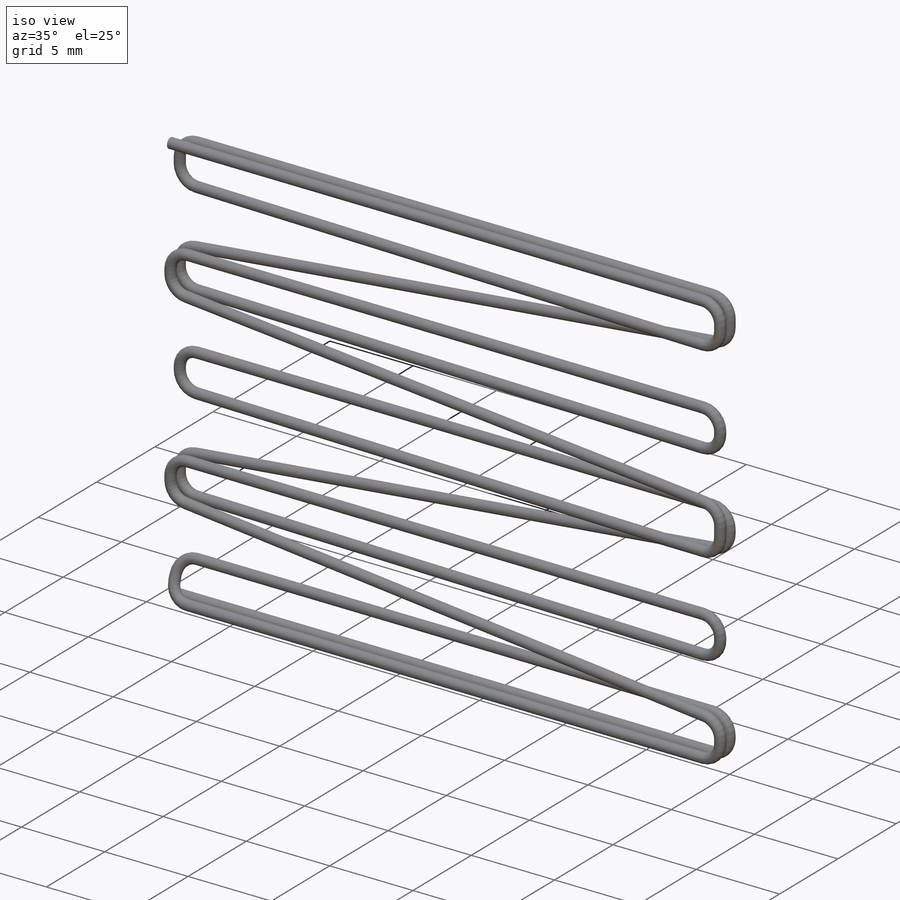
[diagram: iso view]
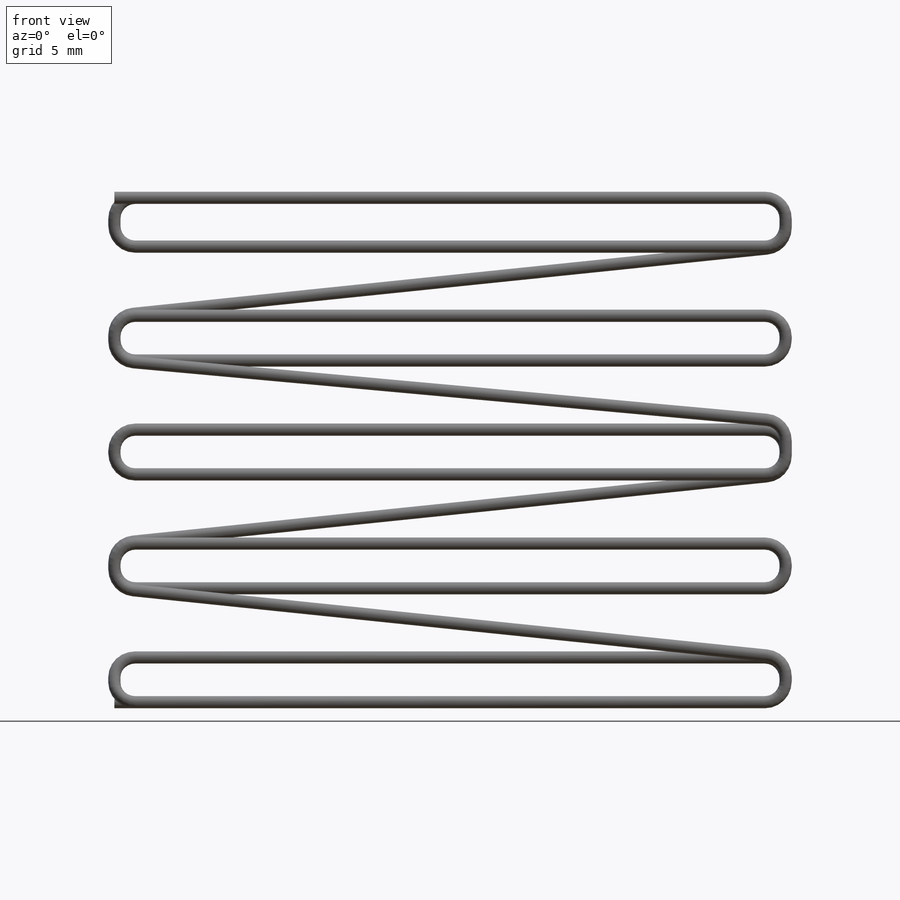
[diagram: front view]
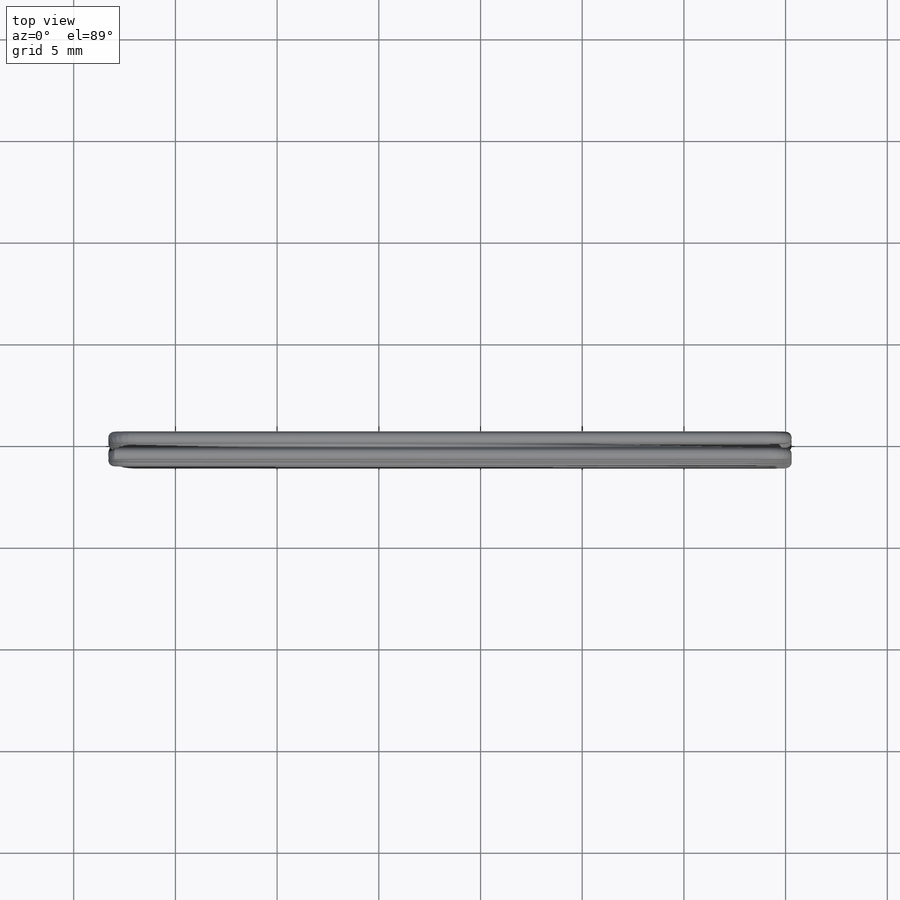
[diagram: top view]
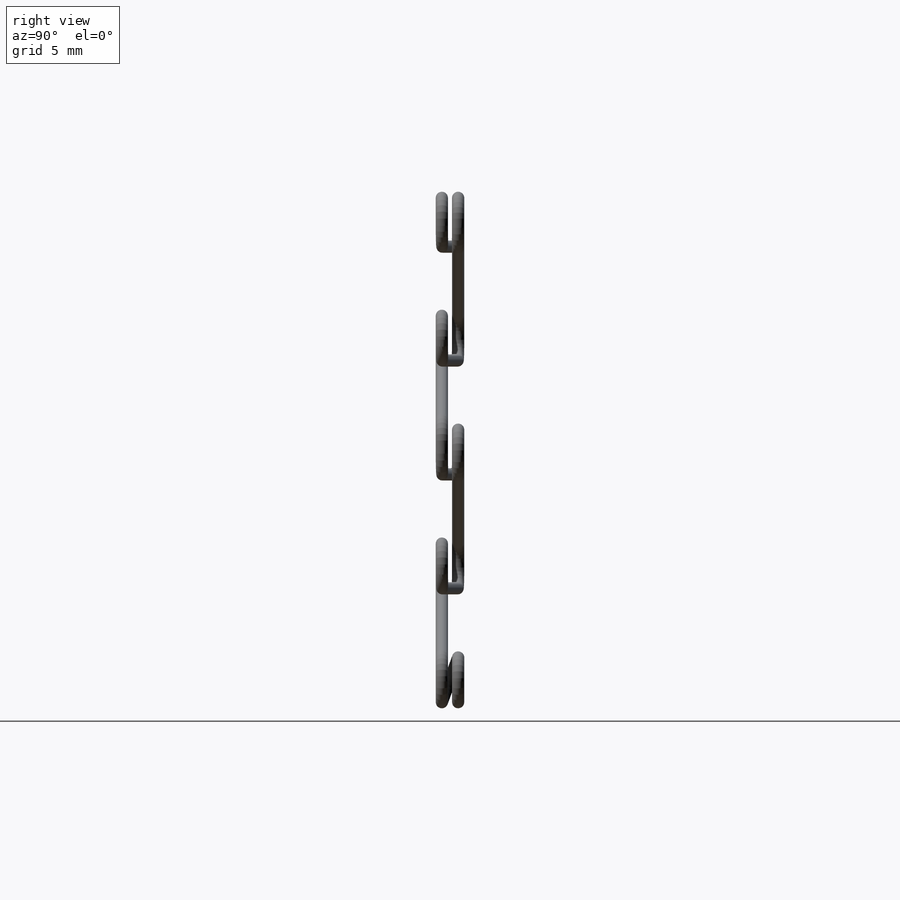
[diagram: right view]
SOLIDWORKS PART (.sldprt)
format: sldprt  version: not decoded by parser v0  size: 385,024 bytes
history: native  units: mm
features: sketch x5, material x1, plane x1, extrude x1, sweep x1 (+11 scaffold rows collapsed)
feature tree (20):
  scaffold x11  (default folders/planes/origin — collapsed)
  material  "Material <not specified>"
  sketch  "3DSketch3"  dims[D1=~1.021256mm]
  sketch  "Sketch4"  dims[D1=0.6mm D2=0.6mm]
  plane  "Plane1"
  sketch  "Sketch6"
  extrude  "Boss-Extrude1"  Depth=2.5mm
  sketch  "Sketch5"  dims[D1=0.4mm D2=0.4mm]
  sweep  "Sweep4"
  sketch  "3DSketch4"  dims[D1=~1.021256mm]
decode coverage: 5 of 7 modeling features carry decoded parameters
note: ~ marks probable driven/reference dimensions
note: suppression state not decoded; provenance and decode notes live in map.json
